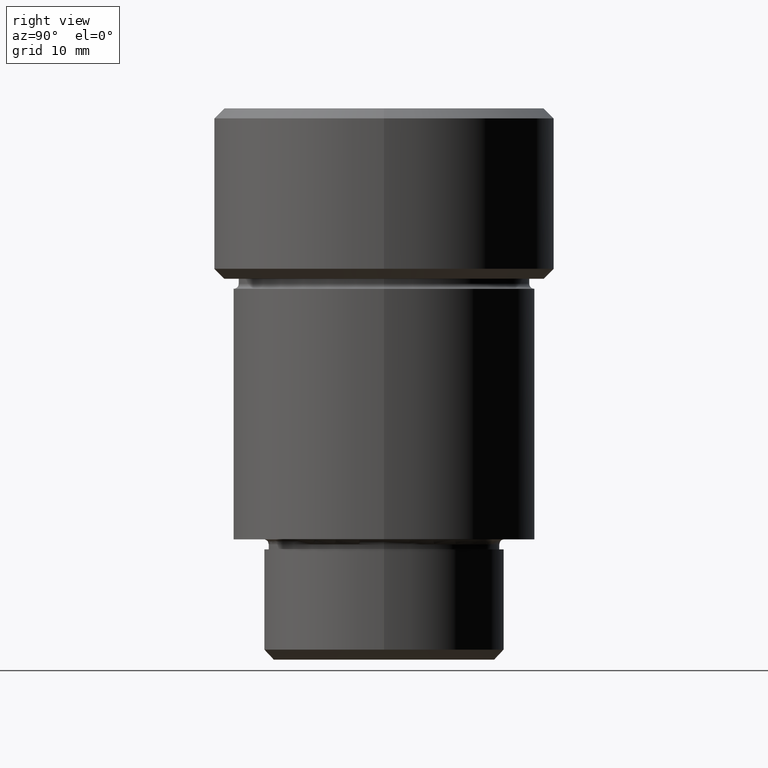
[diagram: clean part render]
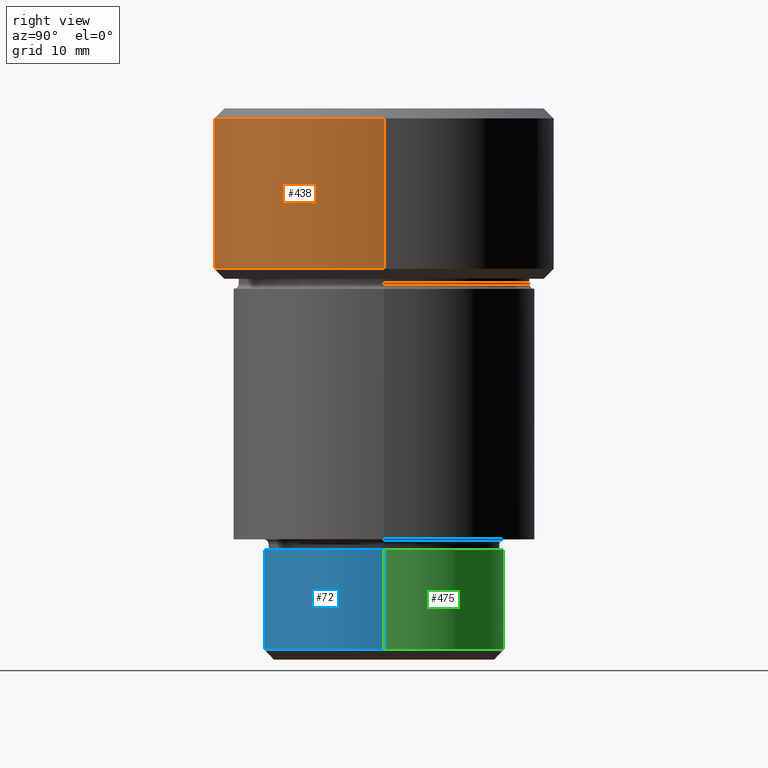
[diagram: same view with three faces highlighted in distinct colors, each labeled with its STEP entity id]
A machine part, right view with three faces highlighted in distinct colors.
Their STEP definitions:

[orange] entity #438 — the highlighted cylindrical surface (partial cylindrical patch) has radius 17 mm, axis along (-0, -0, 1).
#6 = LINE ( 'NONE', #110, #425 ) ;
#24 = VERTEX_POINT ( 'NONE', #533 ) ;
#32 = ORIENTED_EDGE ( 'NONE', *, *, #401, .T. ) ;
#75 = DIRECTION ( 'NONE',  ( 1.000000000000000000, 0.000000000000000000, 0.000000000000000000 ) ) ;
#110 = CARTESIAN_POINT ( 'NONE',  ( 17.00000000000000000, 0.000000000000000000, 0.000000000000000000 ) ) ;
#111 = CARTESIAN_POINT ( 'NONE',  ( -17.00000000000000000, 2.081899558550500280E-15, -1.000000000000011324 ) ) ;
#136 = VERTEX_POINT ( 'NONE', #764 ) ;
#213 = CARTESIAN_POINT ( 'NONE',  ( 0.000000000000000000, 0.000000000000000000, 0.000000000000000000 ) ) ;
#258 = VERTEX_POINT ( 'NONE', #111 ) ;
#273 = EDGE_LOOP ( 'NONE', ( #584, #32, #345, #528 ) ) ;
#327 = CARTESIAN_POINT ( 'NONE',  ( 17.00000000000000000, 0.000000000000000000, -16.00000000000001066 ) ) ;
#343 = DIRECTION ( 'NONE',  ( 1.000000000000000000, 0.000000000000000000, 0.000000000000000000 ) ) ;
#345 = ORIENTED_EDGE ( 'NONE', *, *, #514, .T. ) ;
#369 = CARTESIAN_POINT ( 'NONE',  ( 0.000000000000000000, 0.000000000000000000, -16.00000000000001066 ) ) ;
#377 = CARTESIAN_POINT ( 'NONE',  ( 0.000000000000000000, 0.000000000000000000, -1.000000000000011324 ) ) ;
#383 = DIRECTION ( 'NONE',  ( -1.000000000000000000, 0.000000000000000000, 0.000000000000000000 ) ) ;
#384 = AXIS2_PLACEMENT_3D ( 'NONE', #377, #686, #75 ) ;
#389 = DIRECTION ( 'NONE',  ( -0.000000000000000000, -0.000000000000000000, 1.000000000000000000 ) ) ;
#398 = CIRCLE ( 'NONE', #682, 17.00000000000000000 ) ;
#401 = EDGE_CURVE ( 'NONE', #24, #591, #398, .T. ) ;
#425 = VECTOR ( 'NONE', #478, 1000.000000000000000 ) ;
#438 = ADVANCED_FACE ( 'NONE', ( #595 ), #709, .T. ) ;
#456 = VECTOR ( 'NONE', #668, 1000.000000000000000 ) ;
#477 = CARTESIAN_POINT ( 'NONE',  ( -17.00000000000000000, 2.081899558550500280E-15, 0.000000000000000000 ) ) ;
#478 = DIRECTION ( 'NONE',  ( -0.000000000000000000, -0.000000000000000000, 1.000000000000000000 ) ) ;
#514 = EDGE_CURVE ( 'NONE', #591, #136, #6, .T. ) ;
#528 = ORIENTED_EDGE ( 'NONE', *, *, #571, .T. ) ;
#533 = CARTESIAN_POINT ( 'NONE',  ( -17.00000000000000000, 2.081899558550500280E-15, -16.00000000000001066 ) ) ;
#571 = EDGE_CURVE ( 'NONE', #136, #258, #653, .T. ) ;
#584 = ORIENTED_EDGE ( 'NONE', *, *, #720, .F. ) ;
#591 = VERTEX_POINT ( 'NONE', #327 ) ;
#595 = FACE_OUTER_BOUND ( 'NONE', #273, .T. ) ;
#653 = CIRCLE ( 'NONE', #384, 17.00000000000000000 ) ;
#664 = LINE ( 'NONE', #477, #456 ) ;
#668 = DIRECTION ( 'NONE',  ( -0.000000000000000000, -0.000000000000000000, 1.000000000000000000 ) ) ;
#682 = AXIS2_PLACEMENT_3D ( 'NONE', #369, #389, #383 ) ;
#684 = AXIS2_PLACEMENT_3D ( 'NONE', #213, #768, #343 ) ;
#686 = DIRECTION ( 'NONE',  ( 0.000000000000000000, 0.000000000000000000, -1.000000000000000000 ) ) ;
#709 = CYLINDRICAL_SURFACE ( 'NONE', #684, 17.00000000000000000 ) ;
#720 = EDGE_CURVE ( 'NONE', #24, #258, #664, .T. ) ;
#764 = CARTESIAN_POINT ( 'NONE',  ( 17.00000000000000000, 0.000000000000000000, -1.000000000000011324 ) ) ;
#768 = DIRECTION ( 'NONE',  ( -0.000000000000000000, -0.000000000000000000, 1.000000000000000000 ) ) ;

[blue] entity #72 — the highlighted cylindrical surface (partial cylindrical patch) has radius 12 mm, axis along (-0, -0, 1).
#27 = DIRECTION ( 'NONE',  ( -0.000000000000000000, -0.000000000000000000, 1.000000000000000000 ) ) ;
#34 = CARTESIAN_POINT ( 'NONE',  ( -12.00000000000000355, 1.469576158976824342E-15, 0.000000000000000000 ) ) ;
#40 = ORIENTED_EDGE ( 'NONE', *, *, #759, .F. ) ;
#72 = ADVANCED_FACE ( 'NONE', ( #126 ), #362, .T. ) ;
#93 = CARTESIAN_POINT ( 'NONE',  ( 0.000000000000000000, 0.000000000000000000, -44.00000000000000000 ) ) ;
#96 = CIRCLE ( 'NONE', #142, 12.00000000000000178 ) ;
#126 = FACE_OUTER_BOUND ( 'NONE', #643, .T. ) ;
#127 = ORIENTED_EDGE ( 'NONE', *, *, #141, .F. ) ;
#141 = EDGE_CURVE ( 'NONE', #568, #563, #96, .T. ) ;
#142 = AXIS2_PLACEMENT_3D ( 'NONE', #93, #468, #337 ) ;
#181 = CIRCLE ( 'NONE', #305, 12.00000000000000355 ) ;
#207 = DIRECTION ( 'NONE',  ( -0.000000000000000000, -0.000000000000000000, 1.000000000000000000 ) ) ;
#305 = AXIS2_PLACEMENT_3D ( 'NONE', #687, #751, #448 ) ;
#306 = VECTOR ( 'NONE', #207, 1000.000000000000000 ) ;
#313 = EDGE_CURVE ( 'NONE', #334, #402, #181, .T. ) ;
#323 = CARTESIAN_POINT ( 'NONE',  ( 12.00000000000000355, 0.000000000000000000, -54.00000000000001421 ) ) ;
#334 = VERTEX_POINT ( 'NONE', #744 ) ;
#337 = DIRECTION ( 'NONE',  ( 1.000000000000000000, 0.000000000000000000, 0.000000000000000000 ) ) ;
#362 = CYLINDRICAL_SURFACE ( 'NONE', #469, 12.00000000000000355 ) ;
#365 = DIRECTION ( 'NONE',  ( 1.000000000000000000, 0.000000000000000000, 0.000000000000000000 ) ) ;
#399 = VECTOR ( 'NONE', #27, 1000.000000000000000 ) ;
#402 = VERTEX_POINT ( 'NONE', #323 ) ;
#444 = CARTESIAN_POINT ( 'NONE',  ( 12.00000000000000355, 0.000000000000000000, 0.000000000000000000 ) ) ;
#448 = DIRECTION ( 'NONE',  ( -1.000000000000000000, 0.000000000000000000, 0.000000000000000000 ) ) ;
#468 = DIRECTION ( 'NONE',  ( -0.000000000000000000, -0.000000000000000000, 1.000000000000000000 ) ) ;
#469 = AXIS2_PLACEMENT_3D ( 'NONE', #671, #791, #365 ) ;
#506 = CARTESIAN_POINT ( 'NONE',  ( -12.00000000000000178, 1.469576158976824144E-15, -44.00000000000000000 ) ) ;
#547 = ORIENTED_EDGE ( 'NONE', *, *, #576, .T. ) ;
#563 = VERTEX_POINT ( 'NONE', #633 ) ;
#568 = VERTEX_POINT ( 'NONE', #506 ) ;
#569 = LINE ( 'NONE', #34, #306 ) ;
#576 = EDGE_CURVE ( 'NONE', #402, #563, #750, .T. ) ;
#605 = ORIENTED_EDGE ( 'NONE', *, *, #313, .T. ) ;
#633 = CARTESIAN_POINT ( 'NONE',  ( 12.00000000000000178, 0.000000000000000000, -44.00000000000000000 ) ) ;
#643 = EDGE_LOOP ( 'NONE', ( #40, #605, #547, #127 ) ) ;
#671 = CARTESIAN_POINT ( 'NONE',  ( 0.000000000000000000, 0.000000000000000000, 0.000000000000000000 ) ) ;
#687 = CARTESIAN_POINT ( 'NONE',  ( 0.000000000000000000, 0.000000000000000000, -54.00000000000001421 ) ) ;
#744 = CARTESIAN_POINT ( 'NONE',  ( -12.00000000000000355, 1.469576158976824342E-15, -54.00000000000001421 ) ) ;
#750 = LINE ( 'NONE', #444, #399 ) ;
#751 = DIRECTION ( 'NONE',  ( -0.000000000000000000, -0.000000000000000000, 1.000000000000000000 ) ) ;
#759 = EDGE_CURVE ( 'NONE', #334, #568, #569, .T. ) ;
#791 = DIRECTION ( 'NONE',  ( -0.000000000000000000, -0.000000000000000000, 1.000000000000000000 ) ) ;

[green] entity #475 — the highlighted cylindrical surface (partial cylindrical patch) has radius 12 mm, axis along (-0, -0, 1).
#27 = DIRECTION ( 'NONE',  ( -0.000000000000000000, -0.000000000000000000, 1.000000000000000000 ) ) ;
#34 = CARTESIAN_POINT ( 'NONE',  ( -12.00000000000000355, 1.469576158976824342E-15, 0.000000000000000000 ) ) ;
#48 = EDGE_LOOP ( 'NONE', ( #505, #314, #588, #161 ) ) ;
#92 = DIRECTION ( 'NONE',  ( 1.000000000000000000, 0.000000000000000000, 0.000000000000000000 ) ) ;
#120 = EDGE_CURVE ( 'NONE', #402, #334, #193, .T. ) ;
#161 = ORIENTED_EDGE ( 'NONE', *, *, #576, .F. ) ;
#193 = CIRCLE ( 'NONE', #344, 12.00000000000000355 ) ;
#207 = DIRECTION ( 'NONE',  ( -0.000000000000000000, -0.000000000000000000, 1.000000000000000000 ) ) ;
#225 = FACE_OUTER_BOUND ( 'NONE', #48, .T. ) ;
#236 = DIRECTION ( 'NONE',  ( -0.000000000000000000, -0.000000000000000000, 1.000000000000000000 ) ) ;
#266 = CARTESIAN_POINT ( 'NONE',  ( 0.000000000000000000, 0.000000000000000000, -44.00000000000000000 ) ) ;
#306 = VECTOR ( 'NONE', #207, 1000.000000000000000 ) ;
#314 = ORIENTED_EDGE ( 'NONE', *, *, #759, .T. ) ;
#323 = CARTESIAN_POINT ( 'NONE',  ( 12.00000000000000355, 0.000000000000000000, -54.00000000000001421 ) ) ;
#326 = EDGE_CURVE ( 'NONE', #563, #568, #382, .T. ) ;
#329 = CYLINDRICAL_SURFACE ( 'NONE', #339, 12.00000000000000355 ) ;
#334 = VERTEX_POINT ( 'NONE', #744 ) ;
#338 = AXIS2_PLACEMENT_3D ( 'NONE', #266, #644, #374 ) ;
#339 = AXIS2_PLACEMENT_3D ( 'NONE', #589, #392, #92 ) ;
#344 = AXIS2_PLACEMENT_3D ( 'NONE', #415, #236, #419 ) ;
#374 = DIRECTION ( 'NONE',  ( 1.000000000000000000, 0.000000000000000000, 0.000000000000000000 ) ) ;
#382 = CIRCLE ( 'NONE', #338, 12.00000000000000178 ) ;
#392 = DIRECTION ( 'NONE',  ( -0.000000000000000000, -0.000000000000000000, 1.000000000000000000 ) ) ;
#399 = VECTOR ( 'NONE', #27, 1000.000000000000000 ) ;
#402 = VERTEX_POINT ( 'NONE', #323 ) ;
#415 = CARTESIAN_POINT ( 'NONE',  ( 0.000000000000000000, 0.000000000000000000, -54.00000000000001421 ) ) ;
#419 = DIRECTION ( 'NONE',  ( -1.000000000000000000, 0.000000000000000000, 0.000000000000000000 ) ) ;
#444 = CARTESIAN_POINT ( 'NONE',  ( 12.00000000000000355, 0.000000000000000000, 0.000000000000000000 ) ) ;
#475 = ADVANCED_FACE ( 'NONE', ( #225 ), #329, .T. ) ;
#505 = ORIENTED_EDGE ( 'NONE', *, *, #120, .T. ) ;
#506 = CARTESIAN_POINT ( 'NONE',  ( -12.00000000000000178, 1.469576158976824144E-15, -44.00000000000000000 ) ) ;
#563 = VERTEX_POINT ( 'NONE', #633 ) ;
#568 = VERTEX_POINT ( 'NONE', #506 ) ;
#569 = LINE ( 'NONE', #34, #306 ) ;
#576 = EDGE_CURVE ( 'NONE', #402, #563, #750, .T. ) ;
#588 = ORIENTED_EDGE ( 'NONE', *, *, #326, .F. ) ;
#589 = CARTESIAN_POINT ( 'NONE',  ( 0.000000000000000000, 0.000000000000000000, 0.000000000000000000 ) ) ;
#633 = CARTESIAN_POINT ( 'NONE',  ( 12.00000000000000178, 0.000000000000000000, -44.00000000000000000 ) ) ;
#644 = DIRECTION ( 'NONE',  ( -0.000000000000000000, -0.000000000000000000, 1.000000000000000000 ) ) ;
#744 = CARTESIAN_POINT ( 'NONE',  ( -12.00000000000000355, 1.469576158976824342E-15, -54.00000000000001421 ) ) ;
#750 = LINE ( 'NONE', #444, #399 ) ;
#759 = EDGE_CURVE ( 'NONE', #334, #568, #569, .T. ) ;